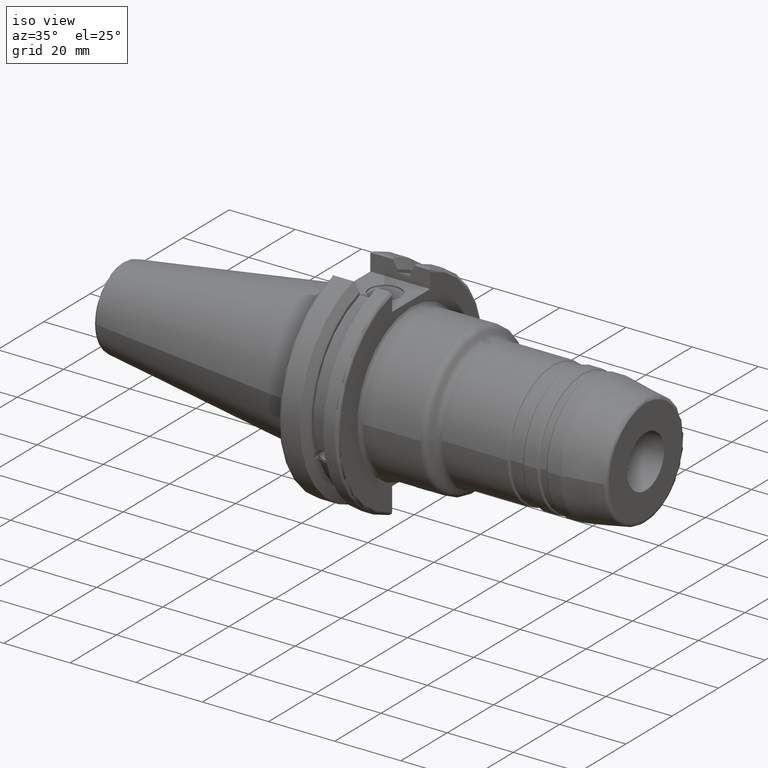
[diagram: clean part render]
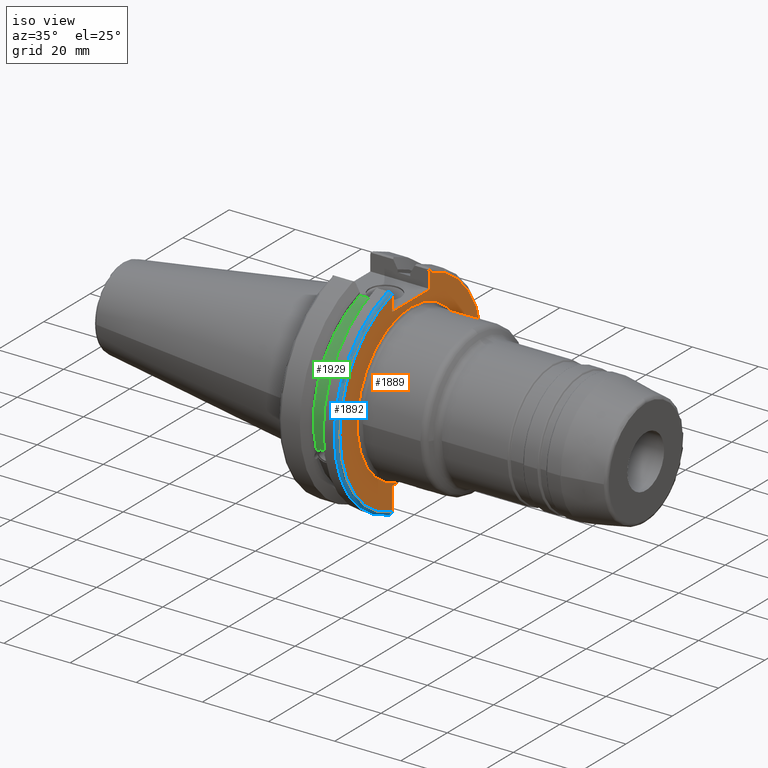
[diagram: same view with three faces highlighted in distinct colors, each labeled with its STEP entity id]
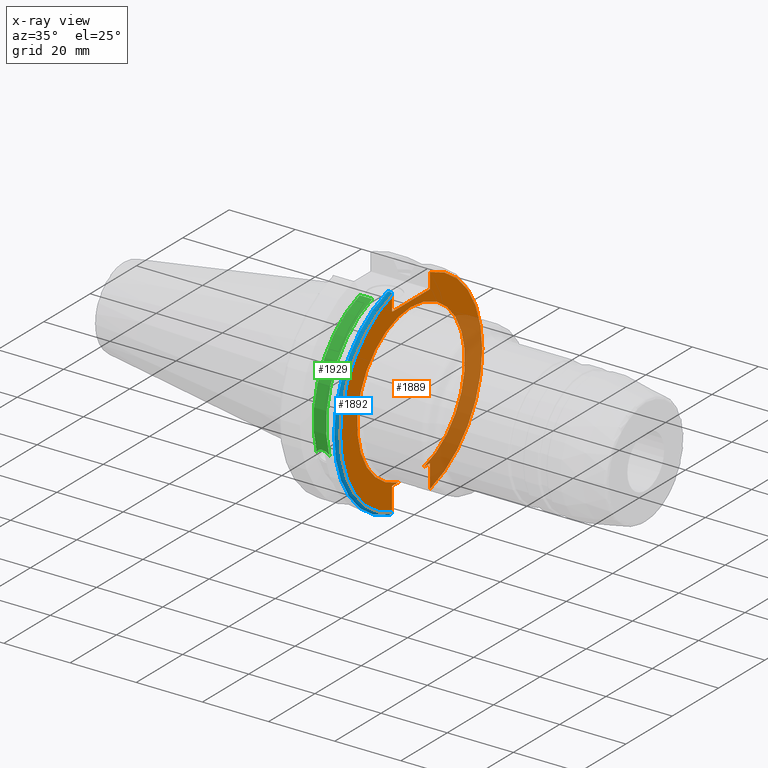
[diagram: x-ray of the same camera — body ghosted, the three highlighted faces saturated]
A machine part, iso view with three faces highlighted in distinct colors.
The next image is the same camera in x-ray (body ghosted, the three faces saturated) — at least one of them is partly hidden behind the body in this view.
Their STEP definitions:

[orange] entity #1889 — the highlighted planar face has unit normal (1, 0, 0).
#111=PLANE('',#2136);
#213=LINE('',#3473,#306);
#214=LINE('',#3474,#307);
#215=LINE('',#3476,#308);
#216=LINE('',#3478,#309);
#217=LINE('',#3480,#310);
#218=LINE('',#3484,#311);
#219=LINE('',#3485,#312);
#306=VECTOR('',#2620,10.);
#307=VECTOR('',#2621,10.);
#308=VECTOR('',#2622,10.);
#309=VECTOR('',#2623,10.);
#310=VECTOR('',#2624,10.);
#311=VECTOR('',#2627,10.);
#312=VECTOR('',#2628,10.);
#435=FACE_OUTER_BOUND('',#550,.T.);
#550=EDGE_LOOP('',(#1565,#1566,#1567,#1568,#1569,#1570,#1571,#1572,#1573,
#1574));
#662=CIRCLE('',#2043,23.25);
#698=CIRCLE('',#2134,30.75);
#700=CIRCLE('',#2137,30.75);
#782=VERTEX_POINT('',#2967);
#783=VERTEX_POINT('',#2974);
#863=VERTEX_POINT('',#3436);
#864=VERTEX_POINT('',#3443);
#868=VERTEX_POINT('',#3472);
#869=VERTEX_POINT('',#3475);
#870=VERTEX_POINT('',#3477);
#871=VERTEX_POINT('',#3479);
#872=VERTEX_POINT('',#3481);
#873=VERTEX_POINT('',#3483);
#1001=EDGE_CURVE('',#782,#783,#662,.T.);
#1114=EDGE_CURVE('',#863,#864,#698,.T.);
#1119=EDGE_CURVE('',#782,#868,#213,.T.);
#1120=EDGE_CURVE('',#868,#864,#214,.T.);
#1121=EDGE_CURVE('',#863,#869,#215,.T.);
#1122=EDGE_CURVE('',#869,#870,#216,.T.);
#1123=EDGE_CURVE('',#870,#871,#217,.T.);
#1124=EDGE_CURVE('',#872,#871,#700,.T.);
#1125=EDGE_CURVE('',#872,#873,#218,.T.);
#1126=EDGE_CURVE('',#873,#783,#219,.T.);
#1565=ORIENTED_EDGE('',*,*,#1001,.F.);
#1566=ORIENTED_EDGE('',*,*,#1119,.T.);
#1567=ORIENTED_EDGE('',*,*,#1120,.T.);
#1568=ORIENTED_EDGE('',*,*,#1114,.F.);
#1569=ORIENTED_EDGE('',*,*,#1121,.T.);
#1570=ORIENTED_EDGE('',*,*,#1122,.T.);
#1571=ORIENTED_EDGE('',*,*,#1123,.T.);
#1572=ORIENTED_EDGE('',*,*,#1124,.F.);
#1573=ORIENTED_EDGE('',*,*,#1125,.T.);
#1574=ORIENTED_EDGE('',*,*,#1126,.T.);
#1889=ADVANCED_FACE('',(#435),#111,.T.);
#2043=AXIS2_PLACEMENT_3D('',#2975,#2399,#2400);
#2134=AXIS2_PLACEMENT_3D('',#3444,#2614,#2615);
#2136=AXIS2_PLACEMENT_3D('',#3471,#2618,#2619);
#2137=AXIS2_PLACEMENT_3D('',#3482,#2625,#2626);
#2399=DIRECTION('center_axis',(1.,0.,0.));
#2400=DIRECTION('ref_axis',(0.,-1.,-1.22464679914735E-16));
#2614=DIRECTION('center_axis',(-1.,0.,0.));
#2615=DIRECTION('ref_axis',(0.,1.,-6.12323399573677E-17));
#2618=DIRECTION('center_axis',(1.,0.,0.));
#2619=DIRECTION('ref_axis',(0.,0.,-1.));
#2620=DIRECTION('',(0.,1.,0.));
#2621=DIRECTION('',(0.,0.,-1.));
#2622=DIRECTION('',(0.,0.,-1.));
#2623=DIRECTION('',(0.,-1.,0.));
#2624=DIRECTION('',(0.,0.,1.));
#2625=DIRECTION('center_axis',(-1.,0.,0.));
#2626=DIRECTION('ref_axis',(0.,-1.,1.60812264967664E-16));
#2627=DIRECTION('',(0.,0.,1.));
#2628=DIRECTION('',(0.,1.,0.));
#2967=CARTESIAN_POINT('',(19.05,5.45916660306312,-22.6));
#2974=CARTESIAN_POINT('',(19.05,-5.45916660306312,-22.6));
#2975=CARTESIAN_POINT('Origin',(19.05,0.,0.));
#3436=CARTESIAN_POINT('',(19.05,8.19,29.6392712461019));
#3443=CARTESIAN_POINT('',(19.05,8.19,-29.6392712461019));
#3444=CARTESIAN_POINT('Origin',(19.05,0.,0.));
#3471=CARTESIAN_POINT('Origin',(19.05,0.,0.));
#3472=CARTESIAN_POINT('',(19.05,8.19,-22.6));
#3473=CARTESIAN_POINT('',(19.05,-2.77555756156289E-16,-22.6));
#3474=CARTESIAN_POINT('',(19.05,8.19,-11.3));
#3475=CARTESIAN_POINT('',(19.05,8.19,25.));
#3476=CARTESIAN_POINT('',(19.05,8.19,12.5));
#3477=CARTESIAN_POINT('',(19.05,-8.19,25.));
#3478=CARTESIAN_POINT('',(19.05,0.,25.));
#3479=CARTESIAN_POINT('',(19.05,-8.19,29.6392712461019));
#3480=CARTESIAN_POINT('',(19.05,-8.19,12.5));
#3481=CARTESIAN_POINT('',(19.05,-8.19,-29.6392712461019));
#3482=CARTESIAN_POINT('Origin',(19.05,0.,0.));
#3483=CARTESIAN_POINT('',(19.05,-8.19,-22.6));
#3484=CARTESIAN_POINT('',(19.05,-8.19,-11.3));
#3485=CARTESIAN_POINT('',(19.05,-2.77555756156289E-16,-22.6));

[blue] entity #1892 — the highlighted toroidal blend (fillet) surface has major radius 30.75 mm and minor (blend) radius 1 mm.
#74=B_SPLINE_CURVE_WITH_KNOTS('',3,(#3518,#3519,#3520,#3521,#3522,#3523),
 .UNSPECIFIED.,.F.,.F.,(4,2,4),(0.0977383630915687,0.112311108149119,0.150804350305566),
 .UNSPECIFIED.);
#75=B_SPLINE_CURVE_WITH_KNOTS('',3,(#3525,#3526,#3527,#3528,#3529,#3530),
 .UNSPECIFIED.,.F.,.F.,(4,2,4),(0.452741154494497,0.491581665024872,0.505824174364157),
 .UNSPECIFIED.);
#76=B_SPLINE_CURVE_WITH_KNOTS('',3,(#3532,#3533,#3534,#3535,#3536,#3537,
#3538,#3539),.UNSPECIFIED.,.F.,.F.,(4,2,2,4),(-0.104180282751876,-0.072978474246144,
-0.0343524753874979,0.),.UNSPECIFIED.);
#77=B_SPLINE_CURVE_WITH_KNOTS('',3,(#3542,#3543,#3544,#3545,#3546,#3547,
#3548,#3549),.UNSPECIFIED.,.F.,.F.,(4,2,2,4),(0.,0.0343524753874979,0.0729784742461441,
0.104180282751877),.UNSPECIFIED.);
#438=FACE_OUTER_BOUND('',#553,.T.);
#553=EDGE_LOOP('',(#1591,#1592,#1593,#1594,#1595,#1596));
#700=CIRCLE('',#2137,30.75);
#701=CIRCLE('',#2141,31.75);
#871=VERTEX_POINT('',#3479);
#872=VERTEX_POINT('',#3481);
#882=VERTEX_POINT('',#3517);
#883=VERTEX_POINT('',#3524);
#884=VERTEX_POINT('',#3531);
#885=VERTEX_POINT('',#3540);
#1124=EDGE_CURVE('',#872,#871,#700,.T.);
#1138=EDGE_CURVE('',#882,#872,#74,.T.);
#1139=EDGE_CURVE('',#871,#883,#75,.T.);
#1140=EDGE_CURVE('',#883,#884,#76,.T.);
#1141=EDGE_CURVE('',#884,#885,#701,.T.);
#1142=EDGE_CURVE('',#885,#882,#77,.T.);
#1591=ORIENTED_EDGE('',*,*,#1138,.T.);
#1592=ORIENTED_EDGE('',*,*,#1124,.T.);
#1593=ORIENTED_EDGE('',*,*,#1139,.T.);
#1594=ORIENTED_EDGE('',*,*,#1140,.T.);
#1595=ORIENTED_EDGE('',*,*,#1141,.T.);
#1596=ORIENTED_EDGE('',*,*,#1142,.T.);
#1822=TOROIDAL_SURFACE('',#2140,30.75,1.);
#1892=ADVANCED_FACE('',(#438),#1822,.T.);
#2137=AXIS2_PLACEMENT_3D('',#3482,#2625,#2626);
#2140=AXIS2_PLACEMENT_3D('',#3516,#2641,#2642);
#2141=AXIS2_PLACEMENT_3D('',#3541,#2643,#2644);
#2625=DIRECTION('center_axis',(-1.,0.,0.));
#2626=DIRECTION('ref_axis',(0.,-1.,1.60812264967664E-16));
#2641=DIRECTION('center_axis',(1.,0.,0.));
#2642=DIRECTION('ref_axis',(0.,0.,-1.));
#2643=DIRECTION('center_axis',(1.,0.,0.));
#2644=DIRECTION('ref_axis',(0.,-1.,1.60812264967664E-16));
#3479=CARTESIAN_POINT('',(19.05,-8.19,29.6392712461019));
#3481=CARTESIAN_POINT('',(19.05,-8.19,-29.6392712461019));
#3482=CARTESIAN_POINT('Origin',(19.05,0.,0.));
#3516=CARTESIAN_POINT('Origin',(18.05,0.,0.));
#3517=CARTESIAN_POINT('',(18.9058722749097,-8.19,-30.1755016258903));
#3518=CARTESIAN_POINT('Ctrl Pts',(18.9058722749097,-8.19,-30.1755016258903));
#3519=CARTESIAN_POINT('Ctrl Pts',(18.9324477233044,-8.19,-30.1299319366157));
#3520=CARTESIAN_POINT('Ctrl Pts',(18.9550700364447,-8.19,-30.0829389905409));
#3521=CARTESIAN_POINT('Ctrl Pts',(19.0210043632013,-8.19,-29.9188002007263));
#3522=CARTESIAN_POINT('Ctrl Pts',(19.05,-8.19,-29.76758205329));
#3523=CARTESIAN_POINT('Ctrl Pts',(19.05,-8.19,-29.6392712461019));
#3524=CARTESIAN_POINT('',(18.9058722749097,-8.19,30.1755016258903));
#3525=CARTESIAN_POINT('Ctrl Pts',(19.05,-8.19,29.6392712461019));
#3526=CARTESIAN_POINT('Ctrl Pts',(19.05,-8.19,29.7687396145364));
#3527=CARTESIAN_POINT('Ctrl Pts',(19.020485567083,-8.19,29.9212724384851));
#3528=CARTESIAN_POINT('Ctrl Pts',(18.9539643471756,-8.19,30.0852355256475));
#3529=CARTESIAN_POINT('Ctrl Pts',(18.9318163728133,-8.19,30.131014531546));
#3530=CARTESIAN_POINT('Ctrl Pts',(18.9058722749097,-8.19,30.1755016258903));
#3531=CARTESIAN_POINT('',(18.05,-8.67204822802685,30.5427254764662));
#3532=CARTESIAN_POINT('Ctrl Pts',(18.9058722749097,-8.19,30.1755016258903));
#3533=CARTESIAN_POINT('Ctrl Pts',(18.8574463042989,-8.2703682833078,30.2367261024977));
#3534=CARTESIAN_POINT('Ctrl Pts',(18.7926702662319,-8.34909446036477,30.2966996242308));
#3535=CARTESIAN_POINT('Ctrl Pts',(18.6396724190507,-8.48862804755883,30.4029961692546));
#3536=CARTESIAN_POINT('Ctrl Pts',(18.5184414294771,-8.56482138642532,30.4610401774263));
#3537=CARTESIAN_POINT('Ctrl Pts',(18.2983170433775,-8.6471881193939,30.5237870709558));
#3538=CARTESIAN_POINT('Ctrl Pts',(18.1645082512917,-8.67204822802685,30.5427254764662));
#3539=CARTESIAN_POINT('Ctrl Pts',(18.05,-8.67204822802685,30.5427254764662));
#3540=CARTESIAN_POINT('',(18.05,-8.67204822802685,-30.5427254764662));
#3541=CARTESIAN_POINT('Origin',(18.05,0.,0.));
#3542=CARTESIAN_POINT('Ctrl Pts',(18.05,-8.67204822802686,-30.5427254764662));
#3543=CARTESIAN_POINT('Ctrl Pts',(18.1645082512917,-8.67204822802686,-30.5427254764662));
#3544=CARTESIAN_POINT('Ctrl Pts',(18.2983170433775,-8.6471881193939,-30.5237870709558));
#3545=CARTESIAN_POINT('Ctrl Pts',(18.5184414294771,-8.56482138642532,-30.4610401774263));
#3546=CARTESIAN_POINT('Ctrl Pts',(18.6396724190507,-8.48862804755884,-30.4029961692546));
#3547=CARTESIAN_POINT('Ctrl Pts',(18.7926702662319,-8.34909446036477,-30.2966996242308));
#3548=CARTESIAN_POINT('Ctrl Pts',(18.8574463042989,-8.27036828330781,-30.2367261024977));
#3549=CARTESIAN_POINT('Ctrl Pts',(18.9058722749097,-8.19,-30.1755016258903));

[green] entity #1929 — the highlighted cylindrical surface (partial cylindrical patch) has radius 28.15 mm, axis along (1, 0, 0).
#59=B_SPLINE_CURVE_WITH_KNOTS('',3,(#3145,#3146,#3147,#3148,#3149,#3150,
#3151,#3152,#3153,#3154,#3155,#3156,#3157,#3158),.UNSPECIFIED.,.F.,.F.,
(4,2,2,2,2,2,4),(0.401639126382403,0.474814416953736,0.553950208498303,
0.633086000042871,0.712221791587438,0.791357583132005,0.864532873703335),
 .UNSPECIFIED.);
#166=CYLINDRICAL_SURFACE('',#2205,28.15);
#232=LINE('',#3571,#325);
#325=VECTOR('',#2651,10.);
#475=FACE_OUTER_BOUND('',#595,.T.);
#595=EDGE_LOOP('',(#1794,#1795,#1796,#1797));
#728=CIRCLE('',#2204,28.15);
#729=CIRCLE('',#2206,28.15);
#807=VERTEX_POINT('',#3142);
#808=VERTEX_POINT('',#3144);
#891=VERTEX_POINT('',#3568);
#892=VERTEX_POINT('',#3570);
#1037=EDGE_CURVE('',#808,#807,#59,.T.);
#1149=EDGE_CURVE('',#892,#891,#232,.T.);
#1216=EDGE_CURVE('',#891,#808,#728,.T.);
#1217=EDGE_CURVE('',#892,#807,#729,.T.);
#1794=ORIENTED_EDGE('',*,*,#1037,.T.);
#1795=ORIENTED_EDGE('',*,*,#1217,.F.);
#1796=ORIENTED_EDGE('',*,*,#1149,.T.);
#1797=ORIENTED_EDGE('',*,*,#1216,.T.);
#1929=ADVANCED_FACE('',(#475),#166,.T.);
#2204=AXIS2_PLACEMENT_3D('',#3757,#2801,#2802);
#2205=AXIS2_PLACEMENT_3D('',#3758,#2803,#2804);
#2206=AXIS2_PLACEMENT_3D('',#3759,#2805,#2806);
#2651=DIRECTION('',(-1.,0.,0.));
#2801=DIRECTION('center_axis',(1.,0.,0.));
#2802=DIRECTION('ref_axis',(0.,0.,-1.));
#2803=DIRECTION('center_axis',(1.,0.,0.));
#2804=DIRECTION('ref_axis',(0.,-0.887654187951484,0.46051063246378));
#2805=DIRECTION('center_axis',(1.,0.,0.));
#2806=DIRECTION('ref_axis',(0.,0.,-1.));
#3142=CARTESIAN_POINT('',(13.091,-26.734714844398,-8.81348524641209));
#3144=CARTESIAN_POINT('',(9.261,-26.734714844398,-8.81348524641212));
#3145=CARTESIAN_POINT('Ctrl Pts',(9.261,-26.734714844398,-8.81348524641212));
#3146=CARTESIAN_POINT('Ctrl Pts',(9.36723057097183,-26.8086519721597,-8.58920529678291));
#3147=CARTESIAN_POINT('Ctrl Pts',(9.5187201377051,-26.8729987454904,-8.38416529997369));
#3148=CARTESIAN_POINT('Ctrl Pts',(9.87747062657411,-26.9778908791383,-8.04056861831091));
#3149=CARTESIAN_POINT('Ctrl Pts',(10.1135450112988,-27.0233016799732,-7.88512567185902));
#3150=CARTESIAN_POINT('Ctrl Pts',(10.6309125426388,-27.0826966800569,-7.67864448400039));
#3151=CARTESIAN_POINT('Ctrl Pts',(10.9122140281848,-27.0968804077294,-7.62768458768512));
#3152=CARTESIAN_POINT('Ctrl Pts',(11.4397859718152,-27.0968804077294,-7.62768458768512));
#3153=CARTESIAN_POINT('Ctrl Pts',(11.7210874573612,-27.0826966800569,-7.6786444840004));
#3154=CARTESIAN_POINT('Ctrl Pts',(12.2384549887012,-27.0233016799732,-7.88512567185902));
#3155=CARTESIAN_POINT('Ctrl Pts',(12.4745293734259,-26.9778908791383,-8.04056861831091));
#3156=CARTESIAN_POINT('Ctrl Pts',(12.8332798622949,-26.8729987454904,-8.38416529997369));
#3157=CARTESIAN_POINT('Ctrl Pts',(12.9847694290282,-26.8086519721597,-8.58920529678289));
#3158=CARTESIAN_POINT('Ctrl Pts',(13.091,-26.734714844398,-8.81348524641209));
#3568=CARTESIAN_POINT('',(9.261,-8.19,26.932255754021));
#3570=CARTESIAN_POINT('',(13.091,-8.19,26.932255754021));
#3571=CARTESIAN_POINT('',(11.176,-8.19,26.932255754021));
#3757=CARTESIAN_POINT('Origin',(9.261,0.,0.));
#3758=CARTESIAN_POINT('Origin',(11.176,0.,0.));
#3759=CARTESIAN_POINT('Origin',(13.091,0.,0.));